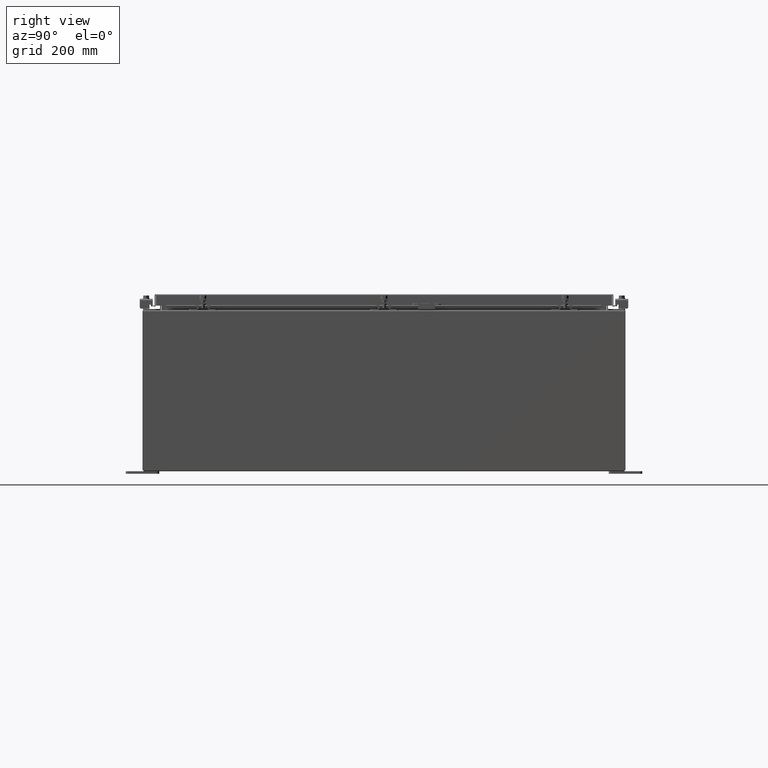
[diagram: clean part render]
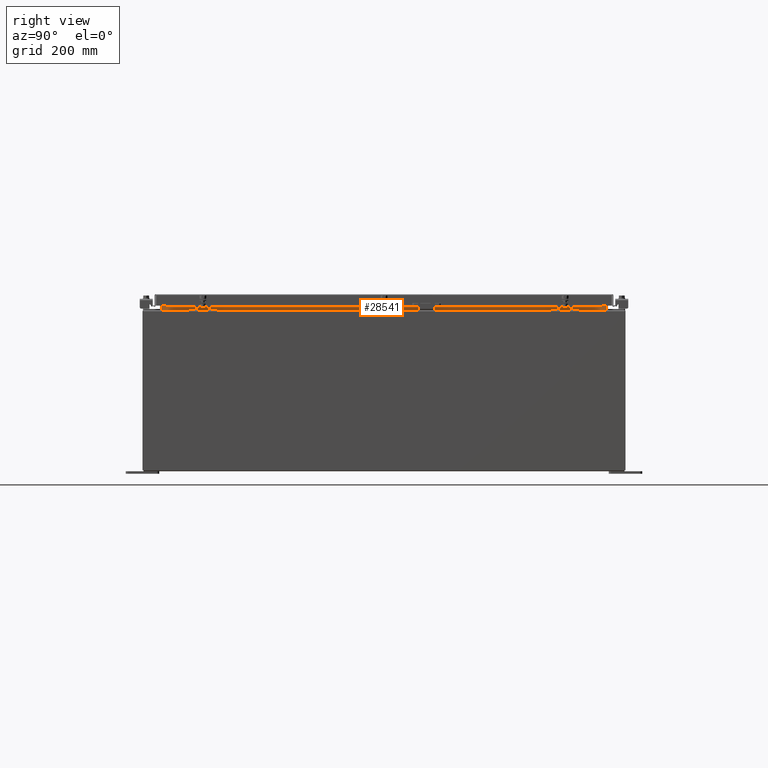
[diagram: same view with one face highlighted and labeled with its STEP entity id]
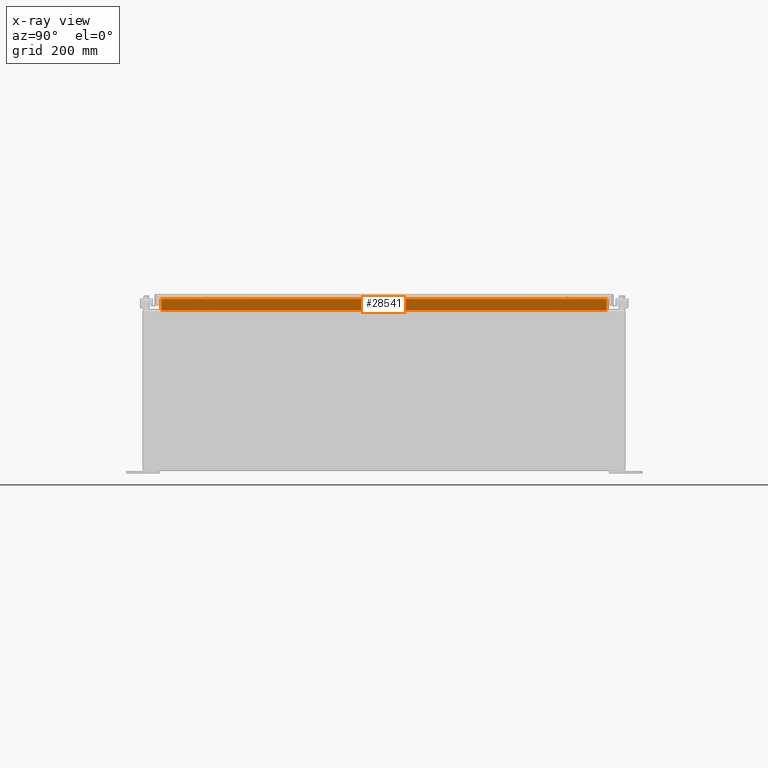
[diagram: x-ray of the same camera — body ghosted, the highlighted face saturated]
A machine part, right view. The second image highlights one B-rep face of the part: STEP entity #28541.
The next image is the same camera in x-ray: the body ghosted, the highlighted face saturated — about 0% of this face is hidden behind the body in this view.
In plain terms, the highlighted planar face has unit normal (1, 0, -0).
Its self-contained STEP definition (entity closure, byte-faithful):
#185 = EDGE_LOOP ( 'NONE', ( #27010, #19569, #41031, #11463 ) ) ;
#269 = EDGE_CURVE ( 'NONE', #20264, #2544, #40315, .T. ) ;
#1572 = CARTESIAN_POINT ( 'NONE',  ( 16.69970000000004300, 16.59375000000000000, 11.92530000000000900 ) ) ;
#1781 = CARTESIAN_POINT ( 'NONE',  ( 16.69970000000004600, -16.59375000000000000, 12.76290000000001100 ) ) ;
#2544 = VERTEX_POINT ( 'NONE', #1781 ) ;
#2679 = VECTOR ( 'NONE', #37866, 39.37007874015748100 ) ;
#4609 = CARTESIAN_POINT ( 'NONE',  ( 16.69970000000004300, -16.59375000000000000, 11.93830000000001200 ) ) ;
#5065 = PLANE ( 'NONE',  #41480 ) ;
#5180 = CARTESIAN_POINT ( 'NONE',  ( 16.69970000000004600, 16.59375000000000000, 12.76290000000001100 ) ) ;
#9137 = DIRECTION ( 'NONE',  ( 6.585245634444928200E-017, -1.000000000000000000, 6.585245634444928200E-017 ) ) ;
#10102 = CARTESIAN_POINT ( 'NONE',  ( 16.69970000000004600, -16.59375000000000000, 12.76290000000001100 ) ) ;
#11463 = ORIENTED_EDGE ( 'NONE', *, *, #21108, .F. ) ;
#11930 = VECTOR ( 'NONE', #9137, 39.37007874015748100 ) ;
#12652 = CARTESIAN_POINT ( 'NONE',  ( 16.69970000000004300, 16.59375000000000000, 11.93830000000000900 ) ) ;
#15603 = DIRECTION ( 'NONE',  ( -4.723826639860386500E-015, 0.0000000000000000000, -1.000000000000000000 ) ) ;
#15707 = VERTEX_POINT ( 'NONE', #28558 ) ;
#15913 = VECTOR ( 'NONE', #33712, 39.37007874015748100 ) ;
#19569 = ORIENTED_EDGE ( 'NONE', *, *, #40392, .F. ) ;
#20264 = VERTEX_POINT ( 'NONE', #4609 ) ;
#21108 = EDGE_CURVE ( 'NONE', #15707, #20264, #30365, .T. ) ;
#22440 = CARTESIAN_POINT ( 'NONE',  ( 16.69969999999998600, 0.0000000000000000000, -7.888648773767642900E-014 ) ) ;
#22990 = VECTOR ( 'NONE', #32704, 39.37007874015748100 ) ;
#26380 = FACE_OUTER_BOUND ( 'NONE', #185, .T. ) ;
#27010 = ORIENTED_EDGE ( 'NONE', *, *, #38528, .F. ) ;
#28541 = ADVANCED_FACE ( 'NONE', ( #26380 ), #5065, .T. ) ;
#28558 = CARTESIAN_POINT ( 'NONE',  ( 16.69970000000004300, 16.59375000000000000, 11.93830000000001200 ) ) ;
#29184 = VERTEX_POINT ( 'NONE', #5180 ) ;
#30365 = LINE ( 'NONE', #12652, #11930 ) ;
#30434 = LINE ( 'NONE', #10102, #2679 ) ;
#32704 = DIRECTION ( 'NONE',  ( -4.723826639860386500E-015, -0.0000000000000000000, -1.000000000000000000 ) ) ;
#33712 = DIRECTION ( 'NONE',  ( 4.723826639860397600E-015, -0.0000000000000000000, 1.000000000000000000 ) ) ;
#36388 = DIRECTION ( 'NONE',  ( 1.000000000000000000, 0.0000000000000000000, -4.723826639860386500E-015 ) ) ;
#36914 = CARTESIAN_POINT ( 'NONE',  ( 16.69970000000004600, -16.59375000000000000, 12.85060000000001100 ) ) ;
#37866 = DIRECTION ( 'NONE',  ( 0.0000000000000000000, 1.000000000000000000, 0.0000000000000000000 ) ) ;
#38528 = EDGE_CURVE ( 'NONE', #29184, #15707, #40338, .T. ) ;
#40315 = LINE ( 'NONE', #36914, #15913 ) ;
#40338 = LINE ( 'NONE', #1572, #22990 ) ;
#40392 = EDGE_CURVE ( 'NONE', #2544, #29184, #30434, .T. ) ;
#41031 = ORIENTED_EDGE ( 'NONE', *, *, #269, .F. ) ;
#41480 = AXIS2_PLACEMENT_3D ( 'NONE', #22440, #36388, #15603 ) ;